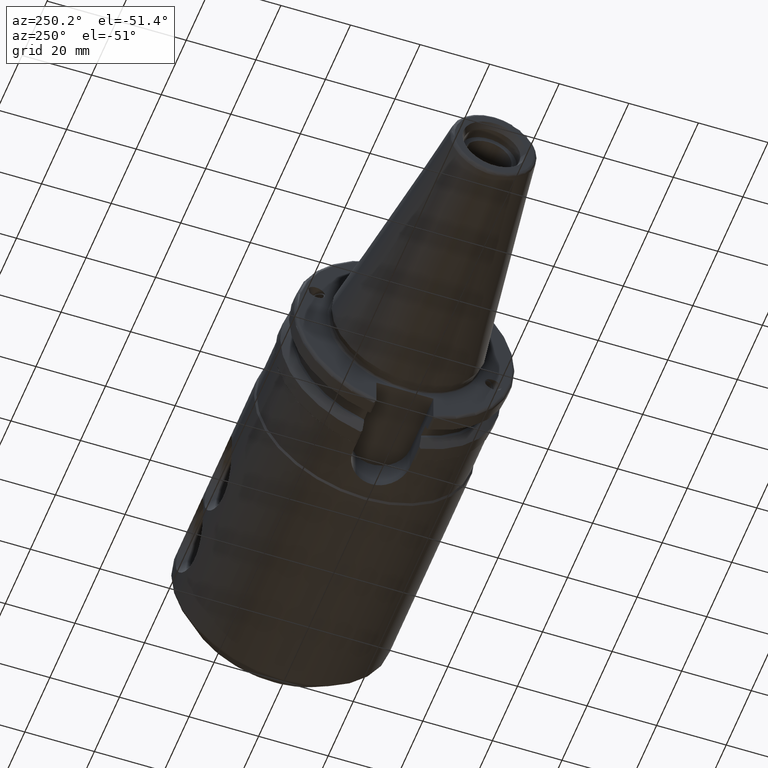
[diagram: clean part render]
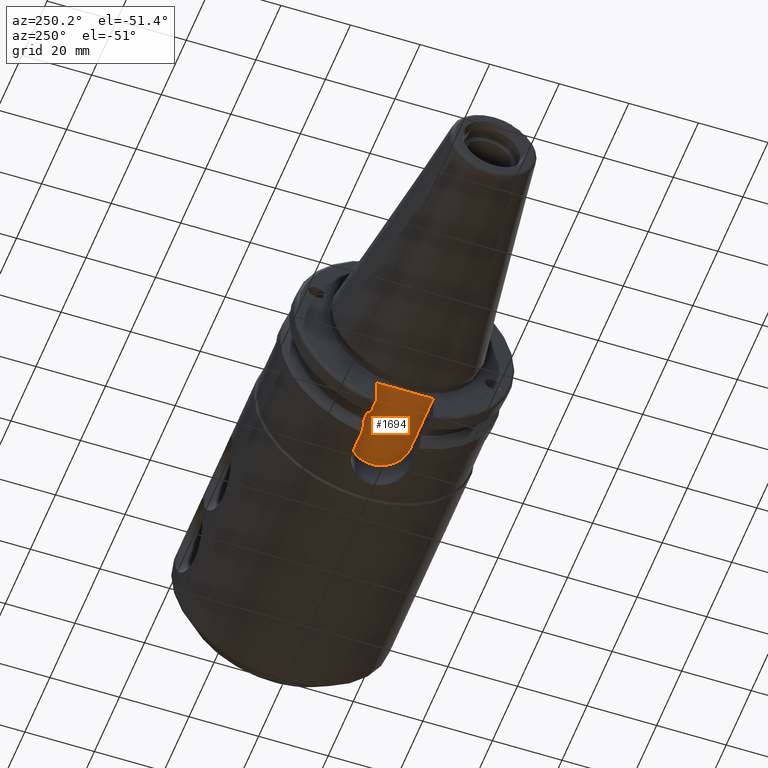
[diagram: same view with one face highlighted and labeled with its STEP entity id]
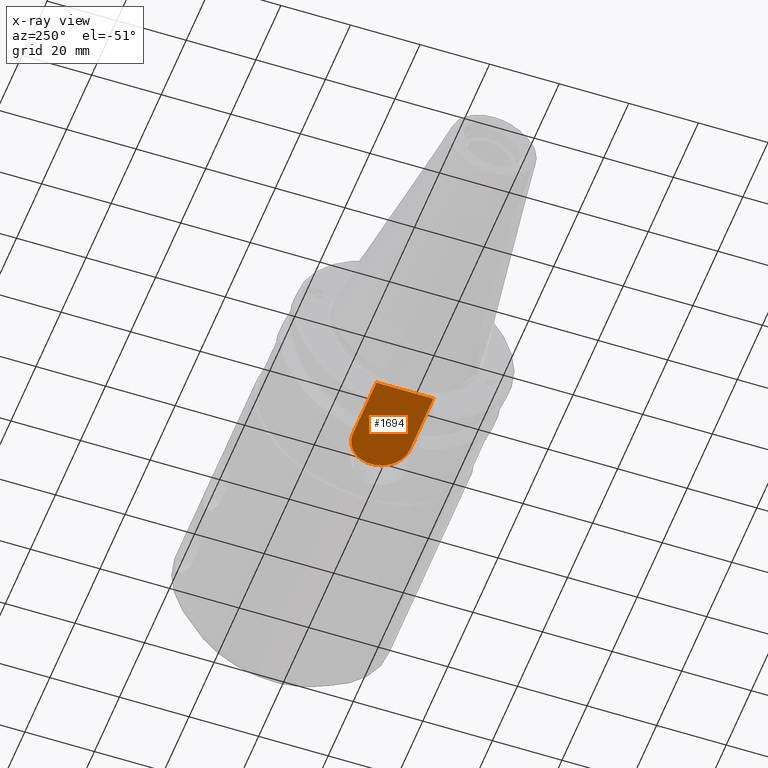
[diagram: x-ray of the same camera — body ghosted, the highlighted face saturated]
A machine part, auxiliary view. The second image highlights one B-rep face of the part: STEP entity #1694.
The next image is the same camera in x-ray: the body ghosted, the highlighted face saturated — about 0% of this face is hidden behind the body in this view.
In plain terms, the highlighted planar face has unit normal (0, 0, 1).
Its self-contained STEP definition (entity closure, byte-faithful):
#89=PLANE('',#1901);
#213=FACE_OUTER_BOUND('',#323,.T.);
#323=EDGE_LOOP('',(#1473,#1474,#1475,#1476));
#425=CIRCLE('',#1784,8.19);
#540=LINE('',#3265,#630);
#554=LINE('',#3422,#644);
#557=LINE('',#3445,#647);
#630=VECTOR('',#2259,10.);
#644=VECTOR('',#2307,10.);
#647=VECTOR('',#2332,10.);
#710=VERTEX_POINT('',#2768);
#711=VERTEX_POINT('',#2770);
#791=VERTEX_POINT('',#3250);
#798=VERTEX_POINT('',#3263);
#896=EDGE_CURVE('',#711,#710,#425,.T.);
#1017=EDGE_CURVE('',#798,#791,#540,.T.);
#1052=EDGE_CURVE('',#798,#711,#554,.T.);
#1062=EDGE_CURVE('',#710,#791,#557,.T.);
#1473=ORIENTED_EDGE('',*,*,#1017,.F.);
#1474=ORIENTED_EDGE('',*,*,#1052,.T.);
#1475=ORIENTED_EDGE('',*,*,#896,.T.);
#1476=ORIENTED_EDGE('',*,*,#1062,.T.);
#1694=ADVANCED_FACE('',(#213),#89,.F.);
#1784=AXIS2_PLACEMENT_3D('',#2771,#2038,#2039);
#1901=AXIS2_PLACEMENT_3D('',#3444,#2330,#2331);
#2038=DIRECTION('center_axis',(0.,0.,-1.));
#2039=DIRECTION('ref_axis',(5.42233467460393E-16,1.,0.));
#2259=DIRECTION('',(0.,-1.,0.));
#2307=DIRECTION('',(1.,-2.36092083918162E-16,0.));
#2330=DIRECTION('center_axis',(0.,0.,1.));
#2331=DIRECTION('ref_axis',(1.,0.,0.));
#2332=DIRECTION('',(-1.,-1.18046041959081E-16,0.));
#2768=CARTESIAN_POINT('',(21.985,-8.19,-22.6));
#2770=CARTESIAN_POINT('',(21.985,8.19000000000001,-22.6));
#2771=CARTESIAN_POINT('Origin',(21.985,0.,-22.6));
#3250=CARTESIAN_POINT('',(3.175,-8.19,-22.6));
#3263=CARTESIAN_POINT('',(3.175,8.19000000000001,-22.6));
#3265=CARTESIAN_POINT('',(3.175,15.875,-22.6));
#3422=CARTESIAN_POINT('',(3.175,8.19000000000001,-22.6));
#3444=CARTESIAN_POINT('Origin',(15.7075,-5.55111512312578E-16,-22.6));
#3445=CARTESIAN_POINT('',(21.985,-8.19,-22.6));